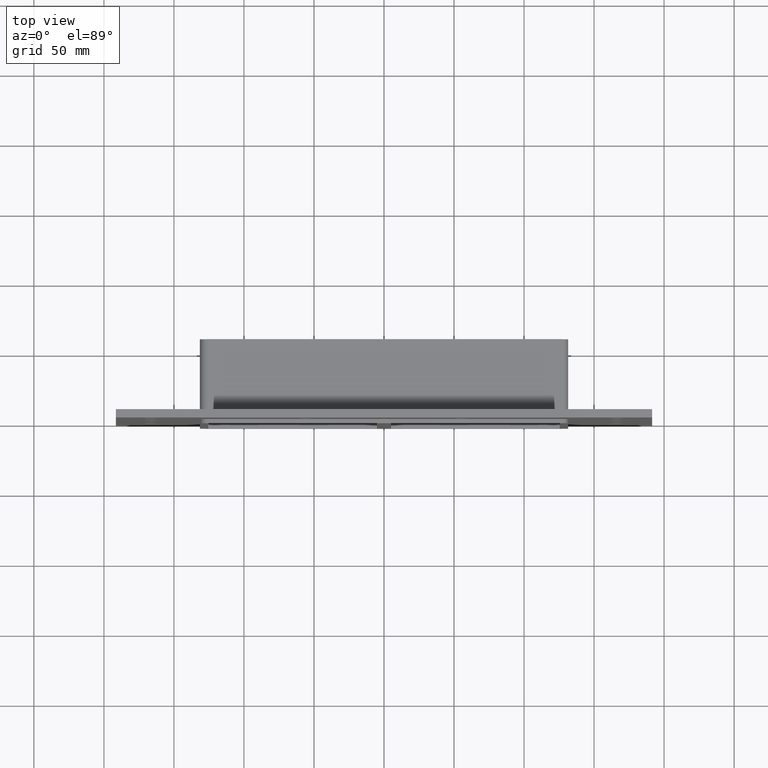
[diagram: clean part render]
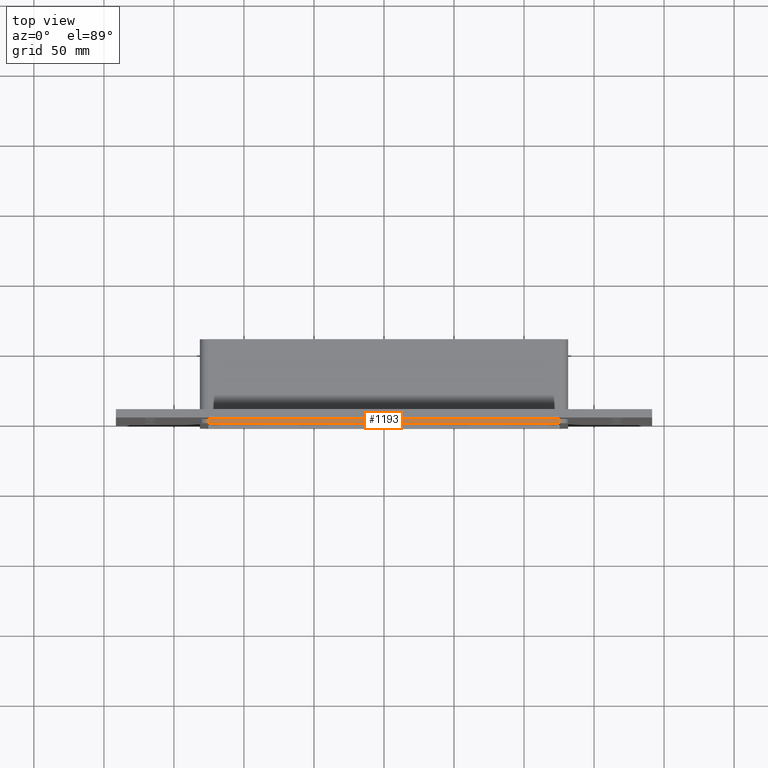
[diagram: same view with one face highlighted and labeled with its STEP entity id]
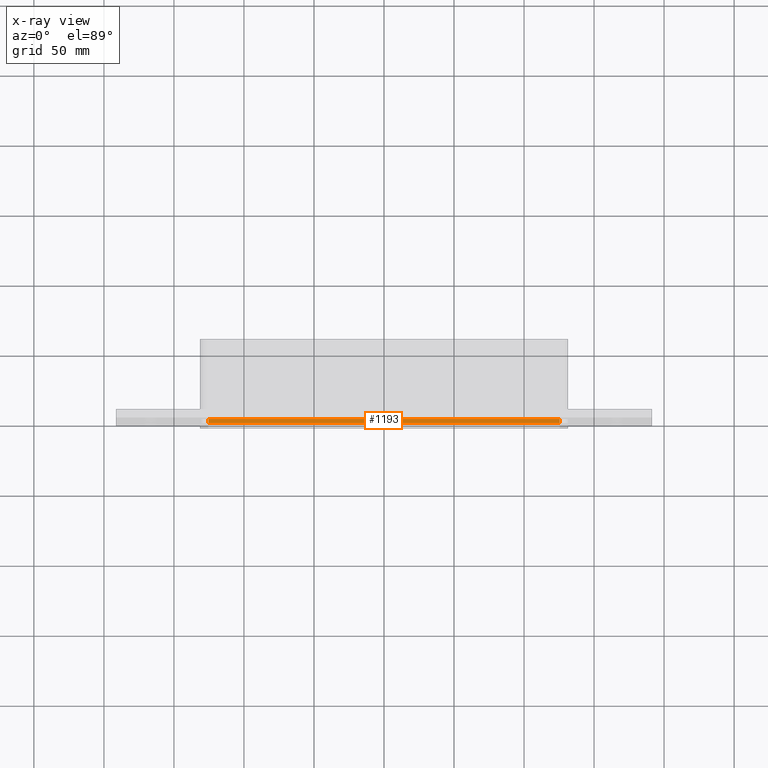
[diagram: x-ray of the same camera — body ghosted, the highlighted face saturated]
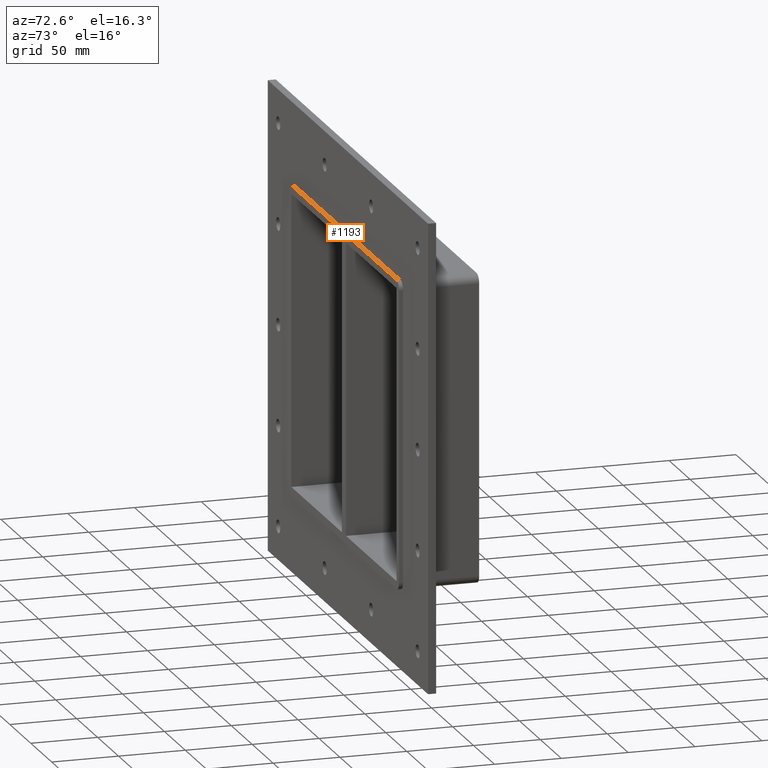
[diagram: same view with one face highlighted and labeled with its STEP entity id]
A machine part, top view. The second image highlights one B-rep face of the part: STEP entity #1193.
The next image is the same camera in x-ray: the body ghosted, the highlighted face saturated — about 0% of this face is hidden behind the body in this view.
A second angle (auxiliary view) of the same face is appended — the face is thin or edge-on in the first view.
In plain terms, the highlighted planar face has unit normal (0, 0, 1).
Its self-contained STEP definition (entity closure, byte-faithful):
#916=CARTESIAN_POINT('',(-125.5,0.0,115.0));
#917=VERTEX_POINT('',#916);
#925=CARTESIAN_POINT('',(125.5,0.0,115.0));
#926=VERTEX_POINT('',#925);
#927=CARTESIAN_POINT('',(125.5,0.0,115.0));
#928=DIRECTION('',(-1.0,0.0,0.0));
#929=VECTOR('',#928,251.0);
#930=LINE('',#927,#929);
#931=EDGE_CURVE('',#926,#917,#930,.T.);
#1064=CARTESIAN_POINT('',(125.50000000000003,-3.0,115.0));
#1065=VERTEX_POINT('',#1064);
#1066=CARTESIAN_POINT('',(125.5,0.0,115.0));
#1067=DIRECTION('',(0.0,-1.0,0.0));
#1068=VECTOR('',#1067,3.0);
#1069=LINE('',#1066,#1068);
#1070=EDGE_CURVE('',#926,#1065,#1069,.T.);
#1170=CARTESIAN_POINT('',(-131.5,0.0,115.0));
#1171=DIRECTION('',(0.0,0.0,1.0));
#1172=DIRECTION('',(1.0,0.0,0.0));
#1173=AXIS2_PLACEMENT_3D('',#1170,#1171,#1172);
#1174=PLANE('',#1173);
#1175=ORIENTED_EDGE('',*,*,#931,.T.);
#1176=CARTESIAN_POINT('',(-125.5,-3.0,115.0));
#1177=VERTEX_POINT('',#1176);
#1178=CARTESIAN_POINT('',(-125.5,-3.0,115.0));
#1179=DIRECTION('',(0.0,1.0,0.0));
#1180=VECTOR('',#1179,3.0);
#1181=LINE('',#1178,#1180);
#1182=EDGE_CURVE('',#1177,#917,#1181,.T.);
#1183=ORIENTED_EDGE('',*,*,#1182,.F.);
#1184=CARTESIAN_POINT('',(125.5,-3.0,115.0));
#1185=DIRECTION('',(-1.0,0.0,0.0));
#1186=VECTOR('',#1185,251.0);
#1187=LINE('',#1184,#1186);
#1188=EDGE_CURVE('',#1065,#1177,#1187,.T.);
#1189=ORIENTED_EDGE('',*,*,#1188,.F.);
#1190=ORIENTED_EDGE('',*,*,#1070,.F.);
#1191=EDGE_LOOP('',(#1175,#1183,#1189,#1190));
#1192=FACE_OUTER_BOUND('',#1191,.T.);
#1193=ADVANCED_FACE('',(#1192),#1174,.T.);